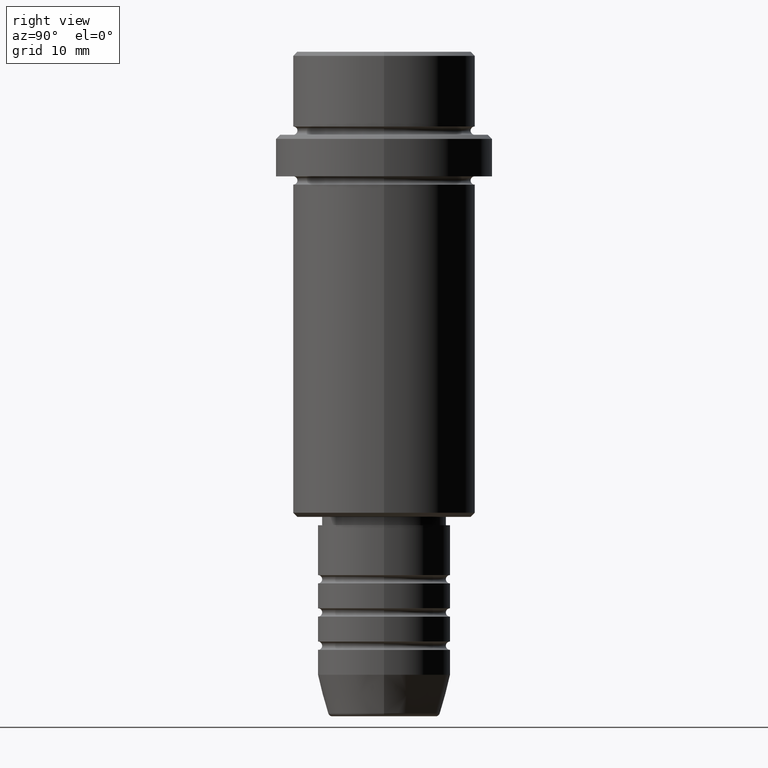
[diagram: clean part render]
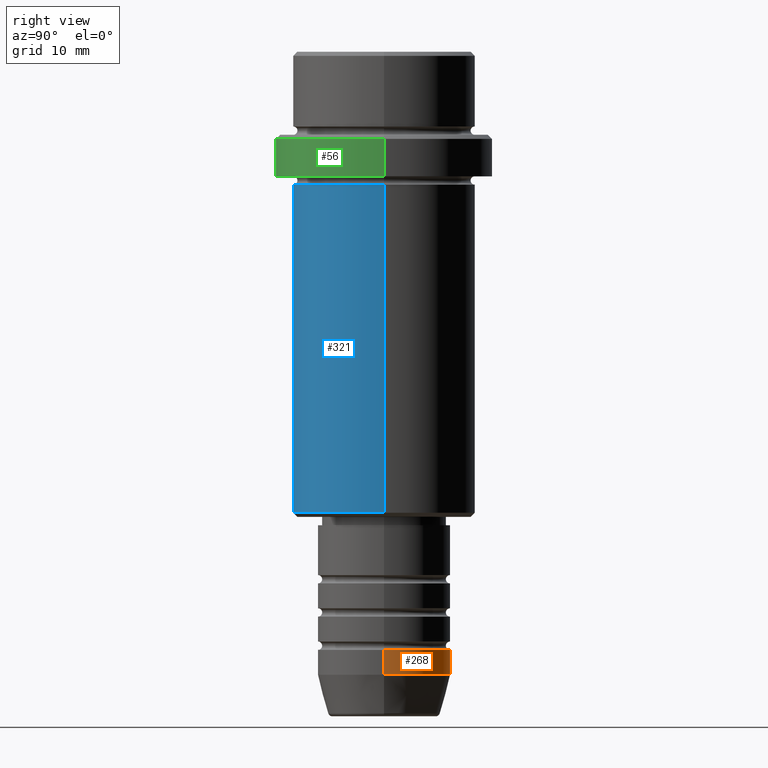
[diagram: same view with three faces highlighted in distinct colors, each labeled with its STEP entity id]
A machine part, right view with three faces highlighted in distinct colors.
Their STEP definitions:

[orange] entity #268 — the highlighted cylindrical surface (partial cylindrical patch) has radius 8 mm, axis along (-0, -0, 1).
#12 = DIRECTION ( 'NONE',  ( -0.000000000000000000, -0.000000000000000000, 1.000000000000000000 ) ) ;
#76 = DIRECTION ( 'NONE',  ( 1.000000000000000000, 0.000000000000000000, 0.000000000000000000 ) ) ;
#91 = AXIS2_PLACEMENT_3D ( 'NONE', #1010, #12, #76 ) ;
#104 = EDGE_CURVE ( 'NONE', #853, #736, #1090, .T. ) ;
#124 = DIRECTION ( 'NONE',  ( 1.000000000000000000, 0.000000000000000000, 0.000000000000000000 ) ) ;
#191 = CARTESIAN_POINT ( 'NONE',  ( 8.000000000000000000, 0.000000000000000000, 0.000000000000000000 ) ) ;
#207 = CARTESIAN_POINT ( 'NONE',  ( 0.000000000000000000, 0.000000000000000000, -72.00000000000001421 ) ) ;
#224 = ORIENTED_EDGE ( 'NONE', *, *, #935, .T. ) ;
#232 = VECTOR ( 'NONE', #423, 1000.000000000000000 ) ;
#268 = ADVANCED_FACE ( 'NONE', ( #1389 ), #574, .T. ) ;
#308 = CARTESIAN_POINT ( 'NONE',  ( -8.000000000000000000, 9.797174393178825657E-16, 0.000000000000000000 ) ) ;
#423 = DIRECTION ( 'NONE',  ( -0.000000000000000000, -0.000000000000000000, 1.000000000000000000 ) ) ;
#448 = DIRECTION ( 'NONE',  ( -0.000000000000000000, -0.000000000000000000, 1.000000000000000000 ) ) ;
#545 = LINE ( 'NONE', #308, #874 ) ;
#556 = DIRECTION ( 'NONE',  ( -0.000000000000000000, -0.000000000000000000, 1.000000000000000000 ) ) ;
#563 = EDGE_CURVE ( 'NONE', #613, #736, #545, .T. ) ;
#565 = CARTESIAN_POINT ( 'NONE',  ( -8.000000000000000000, 9.797174393178825657E-16, -75.00000000000001421 ) ) ;
#574 = CYLINDRICAL_SURFACE ( 'NONE', #940, 8.000000000000000000 ) ;
#613 = VERTEX_POINT ( 'NONE', #565 ) ;
#630 = DIRECTION ( 'NONE',  ( -0.000000000000000000, -0.000000000000000000, 1.000000000000000000 ) ) ;
#669 = DIRECTION ( 'NONE',  ( 1.000000000000000000, 0.000000000000000000, 0.000000000000000000 ) ) ;
#703 = ORIENTED_EDGE ( 'NONE', *, *, #104, .F. ) ;
#736 = VERTEX_POINT ( 'NONE', #916 ) ;
#833 = ORIENTED_EDGE ( 'NONE', *, *, #563, .T. ) ;
#853 = VERTEX_POINT ( 'NONE', #1123 ) ;
#874 = VECTOR ( 'NONE', #630, 1000.000000000000000 ) ;
#886 = LINE ( 'NONE', #191, #232 ) ;
#895 = AXIS2_PLACEMENT_3D ( 'NONE', #207, #556, #124 ) ;
#916 = CARTESIAN_POINT ( 'NONE',  ( -8.000000000000000000, 9.797174393178825657E-16, -72.00000000000001421 ) ) ;
#935 = EDGE_CURVE ( 'NONE', #1146, #613, #1357, .T. ) ;
#940 = AXIS2_PLACEMENT_3D ( 'NONE', #1135, #448, #669 ) ;
#1010 = CARTESIAN_POINT ( 'NONE',  ( 0.000000000000000000, 0.000000000000000000, -75.00000000000001421 ) ) ;
#1018 = EDGE_LOOP ( 'NONE', ( #224, #833, #703, #1086 ) ) ;
#1086 = ORIENTED_EDGE ( 'NONE', *, *, #1133, .F. ) ;
#1090 = CIRCLE ( 'NONE', #895, 8.000000000000000000 ) ;
#1123 = CARTESIAN_POINT ( 'NONE',  ( 8.000000000000000000, 0.000000000000000000, -72.00000000000001421 ) ) ;
#1133 = EDGE_CURVE ( 'NONE', #1146, #853, #886, .T. ) ;
#1135 = CARTESIAN_POINT ( 'NONE',  ( 0.000000000000000000, 0.000000000000000000, 0.000000000000000000 ) ) ;
#1146 = VERTEX_POINT ( 'NONE', #1311 ) ;
#1311 = CARTESIAN_POINT ( 'NONE',  ( 8.000000000000000000, 0.000000000000000000, -75.00000000000001421 ) ) ;
#1357 = CIRCLE ( 'NONE', #91, 8.000000000000000000 ) ;
#1389 = FACE_OUTER_BOUND ( 'NONE', #1018, .T. ) ;

[blue] entity #321 — the highlighted cylindrical surface (partial cylindrical patch) has radius 11 mm, axis along (-0, -0, 1).
#8 = DIRECTION ( 'NONE',  ( -0.000000000000000000, -0.000000000000000000, 1.000000000000000000 ) ) ;
#20 = CARTESIAN_POINT ( 'NONE',  ( 10.99999999999998757, 0.000000000000000000, 0.000000000000000000 ) ) ;
#52 = VERTEX_POINT ( 'NONE', #309 ) ;
#78 = VERTEX_POINT ( 'NONE', #172 ) ;
#98 = CARTESIAN_POINT ( 'NONE',  ( -10.99999999999998757, 1.347111479062086827E-15, -55.50000000000000711 ) ) ;
#106 = CARTESIAN_POINT ( 'NONE',  ( 0.000000000000000000, 0.000000000000000000, -16.00000000000000355 ) ) ;
#120 = EDGE_CURVE ( 'NONE', #52, #200, #751, .T. ) ;
#150 = EDGE_CURVE ( 'NONE', #78, #200, #1017, .T. ) ;
#169 = LINE ( 'NONE', #485, #653 ) ;
#172 = CARTESIAN_POINT ( 'NONE',  ( 10.99999999999998757, 0.000000000000000000, -55.50000000000000711 ) ) ;
#200 = VERTEX_POINT ( 'NONE', #869 ) ;
#266 = DIRECTION ( 'NONE',  ( -0.000000000000000000, -0.000000000000000000, 1.000000000000000000 ) ) ;
#297 = DIRECTION ( 'NONE',  ( -1.000000000000000000, 0.000000000000000000, 0.000000000000000000 ) ) ;
#301 = CIRCLE ( 'NONE', #1380, 10.99999999999998757 ) ;
#309 = CARTESIAN_POINT ( 'NONE',  ( -10.99999999999997158, 1.347111479062085841E-15, -16.00000000000000355 ) ) ;
#312 = EDGE_CURVE ( 'NONE', #540, #52, #169, .T. ) ;
#321 = ADVANCED_FACE ( 'NONE', ( #391 ), #1265, .T. ) ;
#391 = FACE_OUTER_BOUND ( 'NONE', #987, .T. ) ;
#398 = DIRECTION ( 'NONE',  ( 1.000000000000000000, 0.000000000000000000, 0.000000000000000000 ) ) ;
#485 = CARTESIAN_POINT ( 'NONE',  ( -10.99999999999998757, 1.347111479062086827E-15, 0.000000000000000000 ) ) ;
#516 = AXIS2_PLACEMENT_3D ( 'NONE', #615, #266, #398 ) ;
#540 = VERTEX_POINT ( 'NONE', #98 ) ;
#615 = CARTESIAN_POINT ( 'NONE',  ( 0.000000000000000000, 0.000000000000000000, 0.000000000000000000 ) ) ;
#653 = VECTOR ( 'NONE', #1279, 1000.000000000000000 ) ;
#751 = CIRCLE ( 'NONE', #1253, 10.99999999999997158 ) ;
#779 = ORIENTED_EDGE ( 'NONE', *, *, #120, .F. ) ;
#869 = CARTESIAN_POINT ( 'NONE',  ( 10.99999999999997158, 0.000000000000000000, -16.00000000000000355 ) ) ;
#922 = ORIENTED_EDGE ( 'NONE', *, *, #312, .F. ) ;
#979 = CARTESIAN_POINT ( 'NONE',  ( 0.000000000000000000, 0.000000000000000000, -55.50000000000000711 ) ) ;
#987 = EDGE_LOOP ( 'NONE', ( #922, #1059, #1315, #779 ) ) ;
#1017 = LINE ( 'NONE', #20, #1338 ) ;
#1059 = ORIENTED_EDGE ( 'NONE', *, *, #1143, .T. ) ;
#1098 = DIRECTION ( 'NONE',  ( 1.000000000000000000, 0.000000000000000000, 0.000000000000000000 ) ) ;
#1143 = EDGE_CURVE ( 'NONE', #540, #78, #301, .T. ) ;
#1253 = AXIS2_PLACEMENT_3D ( 'NONE', #106, #8, #1098 ) ;
#1265 = CYLINDRICAL_SURFACE ( 'NONE', #516, 10.99999999999998757 ) ;
#1279 = DIRECTION ( 'NONE',  ( -0.000000000000000000, -0.000000000000000000, 1.000000000000000000 ) ) ;
#1308 = DIRECTION ( 'NONE',  ( -0.000000000000000000, -0.000000000000000000, 1.000000000000000000 ) ) ;
#1315 = ORIENTED_EDGE ( 'NONE', *, *, #150, .T. ) ;
#1338 = VECTOR ( 'NONE', #1308, 1000.000000000000000 ) ;
#1380 = AXIS2_PLACEMENT_3D ( 'NONE', #979, #1396, #297 ) ;
#1396 = DIRECTION ( 'NONE',  ( -0.000000000000000000, -0.000000000000000000, 1.000000000000000000 ) ) ;

[green] entity #56 — the highlighted cylindrical surface (partial cylindrical patch) has radius 13 mm, axis along (-0, -0, 1).
#5 = AXIS2_PLACEMENT_3D ( 'NONE', #307, #1310, #1217 ) ;
#48 = CIRCLE ( 'NONE', #918, 13.00000000000000000 ) ;
#56 = ADVANCED_FACE ( 'NONE', ( #985 ), #1190, .T. ) ;
#72 = CIRCLE ( 'NONE', #5, 13.00000000000000000 ) ;
#173 = ORIENTED_EDGE ( 'NONE', *, *, #912, .T. ) ;
#204 = EDGE_CURVE ( 'NONE', #1268, #1400, #72, .T. ) ;
#205 = LINE ( 'NONE', #536, #611 ) ;
#307 = CARTESIAN_POINT ( 'NONE',  ( 0.000000000000000000, 0.000000000000000000, -10.50000000000000711 ) ) ;
#455 = DIRECTION ( 'NONE',  ( -0.000000000000000000, -0.000000000000000000, 1.000000000000000000 ) ) ;
#457 = EDGE_CURVE ( 'NONE', #1247, #1400, #205, .T. ) ;
#470 = CARTESIAN_POINT ( 'NONE',  ( -13.00000000000000000, 1.592040838891559095E-15, -15.00000000000000178 ) ) ;
#488 = LINE ( 'NONE', #1040, #1178 ) ;
#500 = ORIENTED_EDGE ( 'NONE', *, *, #457, .F. ) ;
#518 = ORIENTED_EDGE ( 'NONE', *, *, #986, .T. ) ;
#531 = ORIENTED_EDGE ( 'NONE', *, *, #204, .T. ) ;
#536 = CARTESIAN_POINT ( 'NONE',  ( -13.00000000000000000, 1.592040838891559095E-15, 0.000000000000000000 ) ) ;
#611 = VECTOR ( 'NONE', #995, 1000.000000000000000 ) ;
#737 = DIRECTION ( 'NONE',  ( -0.000000000000000000, -0.000000000000000000, 1.000000000000000000 ) ) ;
#747 = CARTESIAN_POINT ( 'NONE',  ( 0.000000000000000000, 0.000000000000000000, 0.000000000000000000 ) ) ;
#762 = DIRECTION ( 'NONE',  ( 1.000000000000000000, 0.000000000000000000, 0.000000000000000000 ) ) ;
#824 = AXIS2_PLACEMENT_3D ( 'NONE', #747, #876, #762 ) ;
#838 = DIRECTION ( 'NONE',  ( 1.000000000000000000, 0.000000000000000000, 0.000000000000000000 ) ) ;
#876 = DIRECTION ( 'NONE',  ( -0.000000000000000000, -0.000000000000000000, 1.000000000000000000 ) ) ;
#912 = EDGE_CURVE ( 'NONE', #1348, #1268, #488, .T. ) ;
#918 = AXIS2_PLACEMENT_3D ( 'NONE', #967, #737, #838 ) ;
#967 = CARTESIAN_POINT ( 'NONE',  ( 0.000000000000000000, 0.000000000000000000, -15.00000000000000178 ) ) ;
#985 = FACE_OUTER_BOUND ( 'NONE', #1225, .T. ) ;
#986 = EDGE_CURVE ( 'NONE', #1247, #1348, #48, .T. ) ;
#995 = DIRECTION ( 'NONE',  ( -0.000000000000000000, -0.000000000000000000, 1.000000000000000000 ) ) ;
#1040 = CARTESIAN_POINT ( 'NONE',  ( 13.00000000000000000, 0.000000000000000000, 0.000000000000000000 ) ) ;
#1178 = VECTOR ( 'NONE', #455, 1000.000000000000000 ) ;
#1190 = CYLINDRICAL_SURFACE ( 'NONE', #824, 13.00000000000000000 ) ;
#1217 = DIRECTION ( 'NONE',  ( 1.000000000000000000, 0.000000000000000000, 0.000000000000000000 ) ) ;
#1225 = EDGE_LOOP ( 'NONE', ( #500, #518, #173, #531 ) ) ;
#1247 = VERTEX_POINT ( 'NONE', #470 ) ;
#1258 = CARTESIAN_POINT ( 'NONE',  ( 13.00000000000000000, 0.000000000000000000, -10.50000000000000711 ) ) ;
#1268 = VERTEX_POINT ( 'NONE', #1258 ) ;
#1310 = DIRECTION ( 'NONE',  ( 0.000000000000000000, 0.000000000000000000, -1.000000000000000000 ) ) ;
#1332 = CARTESIAN_POINT ( 'NONE',  ( -13.00000000000000000, 1.592040838891559095E-15, -10.50000000000000711 ) ) ;
#1348 = VERTEX_POINT ( 'NONE', #1409 ) ;
#1400 = VERTEX_POINT ( 'NONE', #1332 ) ;
#1409 = CARTESIAN_POINT ( 'NONE',  ( 13.00000000000000000, 0.000000000000000000, -15.00000000000000178 ) ) ;